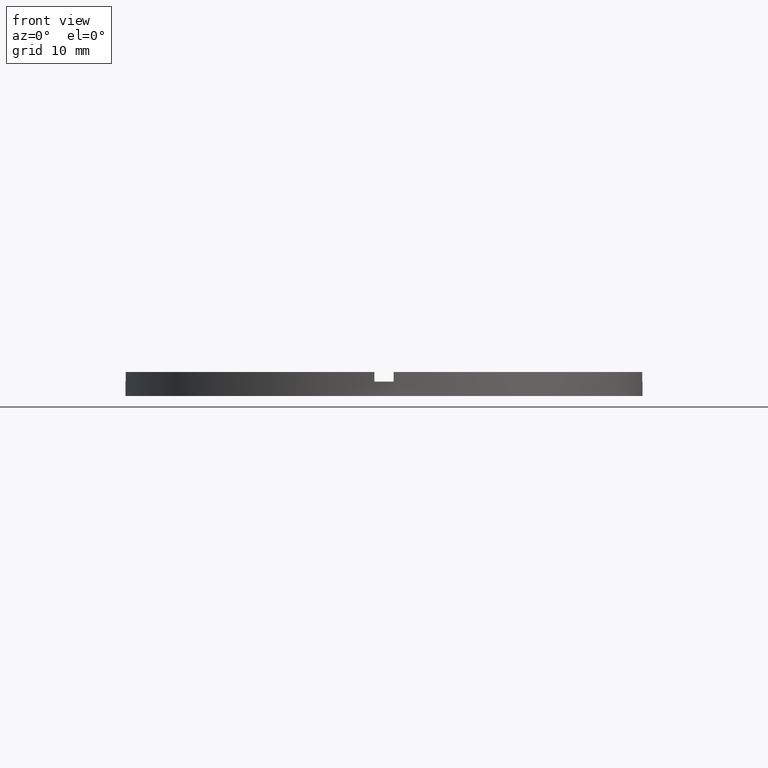
[diagram: clean part render]
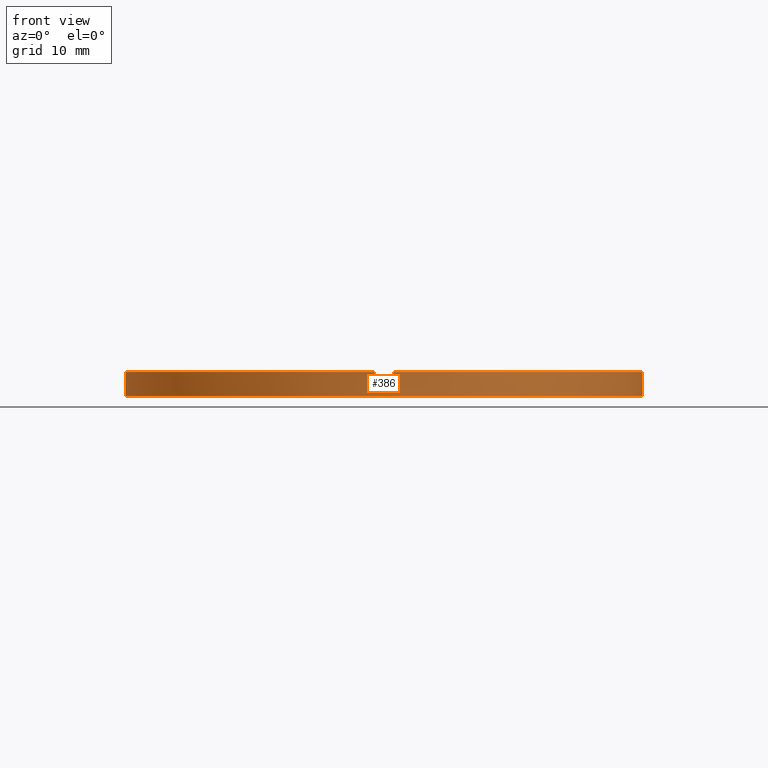
[diagram: same view with one face highlighted and labeled with its STEP entity id]
A machine part, front view. The second image highlights one B-rep face of the part: STEP entity #386.
In plain terms, the highlighted cylindrical surface (partial cylindrical patch) has radius 27 mm, axis along (-0, -0, -1).
Its self-contained STEP definition (entity closure, byte-faithful):
#1 = CARTESIAN_POINT ( 'NONE',  ( 27.00000000000000000, 3.306546357697853733E-15, 0.000000000000000000 ) ) ;
#9 = CARTESIAN_POINT ( 'NONE',  ( -27.00000000000000000, 0.000000000000000000, 0.000000000000000000 ) ) ;
#12 = ORIENTED_EDGE ( 'NONE', *, *, #577, .T. ) ;
#27 = EDGE_CURVE ( 'NONE', #605, #613, #328, .T. ) ;
#36 = CARTESIAN_POINT ( 'NONE',  ( -26.98147512646407975, -1.000000000000026645, 1.500000000000000000 ) ) ;
#39 = CARTESIAN_POINT ( 'NONE',  ( 0.000000000000000000, 0.000000000000000000, 1.500000000000000000 ) ) ;
#47 = DIRECTION ( 'NONE',  ( -0.000000000000000000, -0.000000000000000000, -1.000000000000000000 ) ) ;
#48 = DIRECTION ( 'NONE',  ( 0.000000000000000000, 0.000000000000000000, 1.000000000000000000 ) ) ;
#53 = VECTOR ( 'NONE', #123, 1000.000000000000000 ) ;
#62 = VERTEX_POINT ( 'NONE', #403 ) ;
#81 = VERTEX_POINT ( 'NONE', #490 ) ;
#95 = AXIS2_PLACEMENT_3D ( 'NONE', #228, #517, #629 ) ;
#117 = DIRECTION ( 'NONE',  ( 1.000000000000000000, 0.000000000000000000, 0.000000000000000000 ) ) ;
#121 = EDGE_CURVE ( 'NONE', #202, #613, #339, .T. ) ;
#123 = DIRECTION ( 'NONE',  ( -0.000000000000000000, -0.000000000000000000, -1.000000000000000000 ) ) ;
#124 = DIRECTION ( 'NONE',  ( 0.000000000000000000, 0.000000000000000000, 1.000000000000000000 ) ) ;
#128 = CARTESIAN_POINT ( 'NONE',  ( 0.9999999999998400169, -26.98147512646408686, 2.500000000000000000 ) ) ;
#130 = LINE ( 'NONE', #257, #393 ) ;
#146 = EDGE_CURVE ( 'NONE', #62, #322, #306, .T. ) ;
#148 = CIRCLE ( 'NONE', #261, 27.00000000000000000 ) ;
#149 = LINE ( 'NONE', #309, #417 ) ;
#151 = CYLINDRICAL_SURFACE ( 'NONE', #495, 27.00000000000000000 ) ;
#171 = ORIENTED_EDGE ( 'NONE', *, *, #237, .T. ) ;
#174 = VECTOR ( 'NONE', #751, 1000.000000000000000 ) ;
#184 = VERTEX_POINT ( 'NONE', #671 ) ;
#186 = DIRECTION ( 'NONE',  ( 0.000000000000000000, 0.000000000000000000, 1.000000000000000000 ) ) ;
#189 = ORIENTED_EDGE ( 'NONE', *, *, #554, .F. ) ;
#192 = VERTEX_POINT ( 'NONE', #290 ) ;
#193 = ORIENTED_EDGE ( 'NONE', *, *, #518, .F. ) ;
#194 = VERTEX_POINT ( 'NONE', #128 ) ;
#195 = CARTESIAN_POINT ( 'NONE',  ( 0.000000000000000000, 0.000000000000000000, 2.500000000000000000 ) ) ;
#196 = ORIENTED_EDGE ( 'NONE', *, *, #27, .T. ) ;
#201 = DIRECTION ( 'NONE',  ( -0.000000000000000000, -0.000000000000000000, -1.000000000000000000 ) ) ;
#202 = VERTEX_POINT ( 'NONE', #358 ) ;
#213 = EDGE_LOOP ( 'NONE', ( #329, #587, #171, #725, #12, #220, #730, #189, #319, #193, #435, #196 ) ) ;
#219 = EDGE_CURVE ( 'NONE', #330, #192, #149, .T. ) ;
#220 = ORIENTED_EDGE ( 'NONE', *, *, #687, .F. ) ;
#224 = AXIS2_PLACEMENT_3D ( 'NONE', #779, #440, #285 ) ;
#228 = CARTESIAN_POINT ( 'NONE',  ( 0.000000000000000000, 0.000000000000000000, 1.500000000000000000 ) ) ;
#237 = EDGE_CURVE ( 'NONE', #455, #184, #130, .T. ) ;
#239 = DIRECTION ( 'NONE',  ( 1.000000000000000000, 0.000000000000000000, 0.000000000000000000 ) ) ;
#257 = CARTESIAN_POINT ( 'NONE',  ( 26.98147512646407620, -1.000000000000157208, 2.500000000000000000 ) ) ;
#261 = AXIS2_PLACEMENT_3D ( 'NONE', #195, #591, #117 ) ;
#272 = AXIS2_PLACEMENT_3D ( 'NONE', #428, #124, #560 ) ;
#285 = DIRECTION ( 'NONE',  ( 1.000000000000000000, 0.000000000000000000, 0.000000000000000000 ) ) ;
#288 = EDGE_CURVE ( 'NONE', #194, #184, #148, .T. ) ;
#290 = CARTESIAN_POINT ( 'NONE',  ( -1.000000000000160094, -26.98147512646407620, 2.500000000000000000 ) ) ;
#306 = LINE ( 'NONE', #354, #585 ) ;
#309 = CARTESIAN_POINT ( 'NONE',  ( -1.000000000000160094, -26.98147512646407620, 2.500000000000000000 ) ) ;
#319 = ORIENTED_EDGE ( 'NONE', *, *, #146, .T. ) ;
#322 = VERTEX_POINT ( 'NONE', #36 ) ;
#328 = CIRCLE ( 'NONE', #396, 27.00000000000000000 ) ;
#329 = ORIENTED_EDGE ( 'NONE', *, *, #121, .F. ) ;
#330 = VERTEX_POINT ( 'NONE', #406 ) ;
#339 = LINE ( 'NONE', #545, #53 ) ;
#352 = DIRECTION ( 'NONE',  ( -1.000000000000000000, 0.000000000000000000, 0.000000000000000000 ) ) ;
#354 = CARTESIAN_POINT ( 'NONE',  ( -26.98147512646407975, -1.000000000000026645, 2.500000000000000000 ) ) ;
#358 = CARTESIAN_POINT ( 'NONE',  ( 27.00000000000000000, 3.306546357697853733E-15, 1.500000000000000000 ) ) ;
#370 = DIRECTION ( 'NONE',  ( 0.000000000000000000, 0.000000000000000000, 1.000000000000000000 ) ) ;
#376 = VECTOR ( 'NONE', #769, 1000.000000000000000 ) ;
#383 = DIRECTION ( 'NONE',  ( 0.000000000000000000, 0.000000000000000000, 1.000000000000000000 ) ) ;
#386 = ADVANCED_FACE ( 'NONE', ( #416 ), #151, .T. ) ;
#393 = VECTOR ( 'NONE', #370, 1000.000000000000000 ) ;
#396 = AXIS2_PLACEMENT_3D ( 'NONE', #532, #186, #239 ) ;
#403 = CARTESIAN_POINT ( 'NONE',  ( -26.98147512646407975, -1.000000000000026645, 2.500000000000000000 ) ) ;
#406 = CARTESIAN_POINT ( 'NONE',  ( -1.000000000000160094, -26.98147512646407620, 1.500000000000000000 ) ) ;
#416 = FACE_OUTER_BOUND ( 'NONE', #213, .T. ) ;
#417 = VECTOR ( 'NONE', #383, 1000.000000000000000 ) ;
#424 = CIRCLE ( 'NONE', #224, 27.00000000000000000 ) ;
#428 = CARTESIAN_POINT ( 'NONE',  ( 0.000000000000000000, 0.000000000000000000, 2.500000000000000000 ) ) ;
#435 = ORIENTED_EDGE ( 'NONE', *, *, #771, .T. ) ;
#440 = DIRECTION ( 'NONE',  ( 0.000000000000000000, 0.000000000000000000, 1.000000000000000000 ) ) ;
#442 = CIRCLE ( 'NONE', #95, 27.00000000000000000 ) ;
#449 = LINE ( 'NONE', #684, #174 ) ;
#455 = VERTEX_POINT ( 'NONE', #736 ) ;
#465 = CARTESIAN_POINT ( 'NONE',  ( 0.9999999999998400169, -26.98147512646408686, 1.500000000000000000 ) ) ;
#490 = CARTESIAN_POINT ( 'NONE',  ( -27.00000000000000000, 0.000000000000000000, 1.500000000000000000 ) ) ;
#495 = AXIS2_PLACEMENT_3D ( 'NONE', #650, #201, #352 ) ;
#516 = EDGE_CURVE ( 'NONE', #455, #202, #424, .T. ) ;
#517 = DIRECTION ( 'NONE',  ( -0.000000000000000000, 0.000000000000000000, 1.000000000000000000 ) ) ;
#518 = EDGE_CURVE ( 'NONE', #81, #322, #702, .T. ) ;
#525 = AXIS2_PLACEMENT_3D ( 'NONE', #39, #48, #670 ) ;
#532 = CARTESIAN_POINT ( 'NONE',  ( 0.000000000000000000, 0.000000000000000000, 0.000000000000000000 ) ) ;
#545 = CARTESIAN_POINT ( 'NONE',  ( 27.00000000000000000, 3.306546357697853733E-15, 2.500000000000000000 ) ) ;
#554 = EDGE_CURVE ( 'NONE', #62, #192, #705, .T. ) ;
#560 = DIRECTION ( 'NONE',  ( 1.000000000000000000, 0.000000000000000000, 0.000000000000000000 ) ) ;
#577 = EDGE_CURVE ( 'NONE', #194, #782, #449, .T. ) ;
#585 = VECTOR ( 'NONE', #47, 1000.000000000000000 ) ;
#587 = ORIENTED_EDGE ( 'NONE', *, *, #516, .F. ) ;
#591 = DIRECTION ( 'NONE',  ( 0.000000000000000000, 0.000000000000000000, 1.000000000000000000 ) ) ;
#605 = VERTEX_POINT ( 'NONE', #9 ) ;
#613 = VERTEX_POINT ( 'NONE', #1 ) ;
#629 = DIRECTION ( 'NONE',  ( 1.000000000000000000, 0.000000000000000000, 0.000000000000000000 ) ) ;
#636 = LINE ( 'NONE', #639, #376 ) ;
#639 = CARTESIAN_POINT ( 'NONE',  ( -27.00000000000000000, 0.000000000000000000, 2.500000000000000000 ) ) ;
#650 = CARTESIAN_POINT ( 'NONE',  ( 0.000000000000000000, 0.000000000000000000, 2.500000000000000000 ) ) ;
#670 = DIRECTION ( 'NONE',  ( 1.000000000000000000, 0.000000000000000000, 0.000000000000000000 ) ) ;
#671 = CARTESIAN_POINT ( 'NONE',  ( 26.98147512646407620, -1.000000000000157208, 2.500000000000000000 ) ) ;
#684 = CARTESIAN_POINT ( 'NONE',  ( 0.9999999999998400169, -26.98147512646408686, 2.500000000000000000 ) ) ;
#687 = EDGE_CURVE ( 'NONE', #330, #782, #442, .T. ) ;
#702 = CIRCLE ( 'NONE', #525, 27.00000000000000000 ) ;
#705 = CIRCLE ( 'NONE', #272, 27.00000000000000000 ) ;
#725 = ORIENTED_EDGE ( 'NONE', *, *, #288, .F. ) ;
#730 = ORIENTED_EDGE ( 'NONE', *, *, #219, .T. ) ;
#736 = CARTESIAN_POINT ( 'NONE',  ( 26.98147512646407620, -1.000000000000157208, 1.500000000000000000 ) ) ;
#751 = DIRECTION ( 'NONE',  ( -0.000000000000000000, -0.000000000000000000, -1.000000000000000000 ) ) ;
#769 = DIRECTION ( 'NONE',  ( -0.000000000000000000, -0.000000000000000000, -1.000000000000000000 ) ) ;
#771 = EDGE_CURVE ( 'NONE', #81, #605, #636, .T. ) ;
#779 = CARTESIAN_POINT ( 'NONE',  ( 0.000000000000000000, 0.000000000000000000, 1.500000000000000000 ) ) ;
#782 = VERTEX_POINT ( 'NONE', #465 ) ;